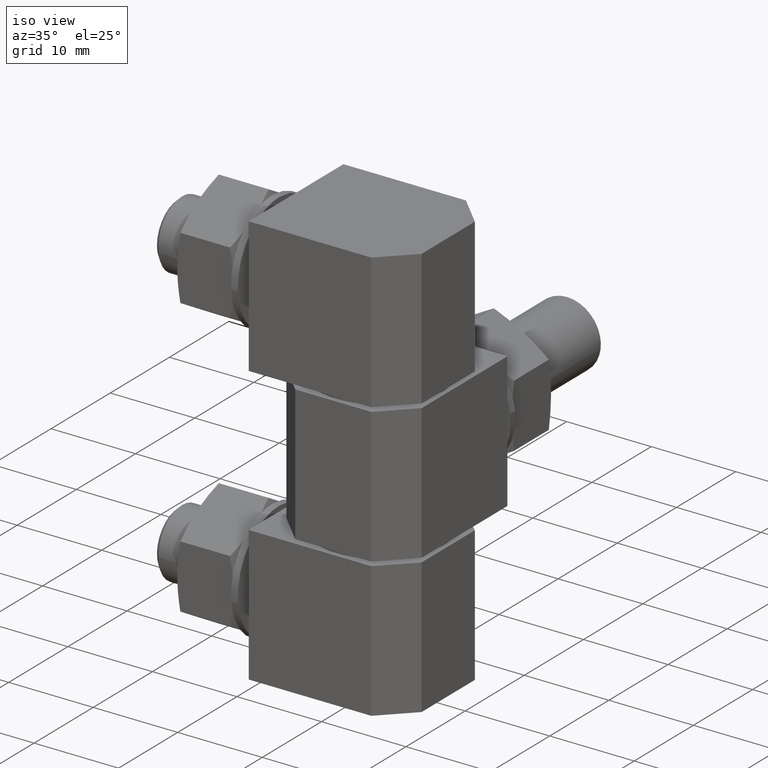
[diagram: clean part render]
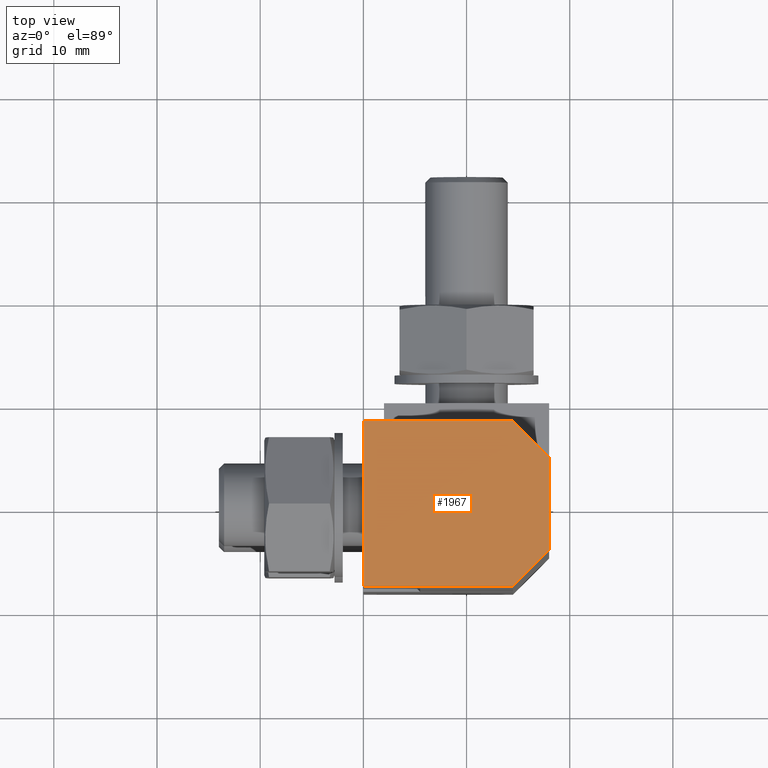
[diagram: tour spotlight — one face highlighted and labeled with its STEP entity id]
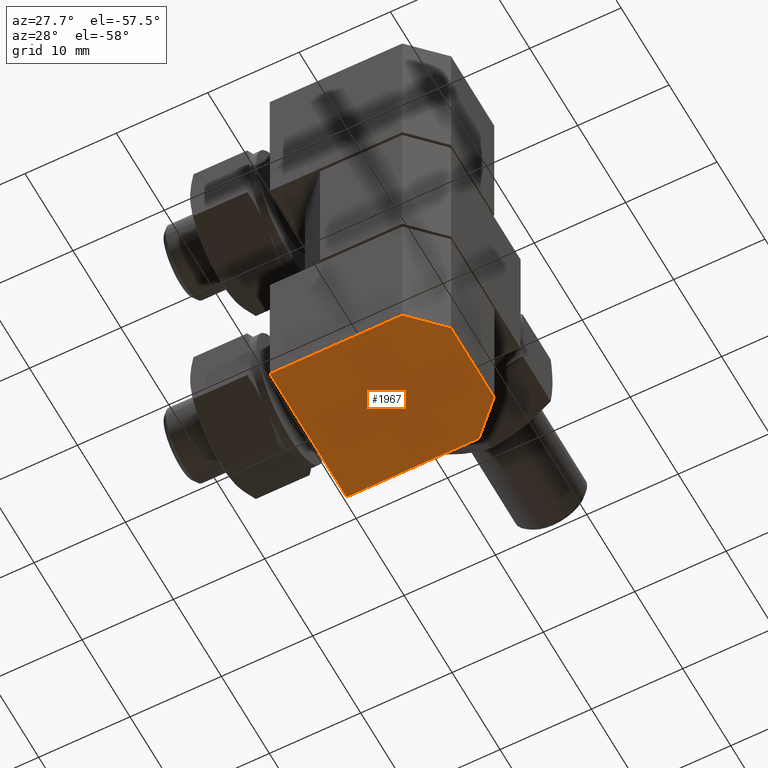
[diagram: tour spotlight — one face highlighted and labeled with its STEP entity id]
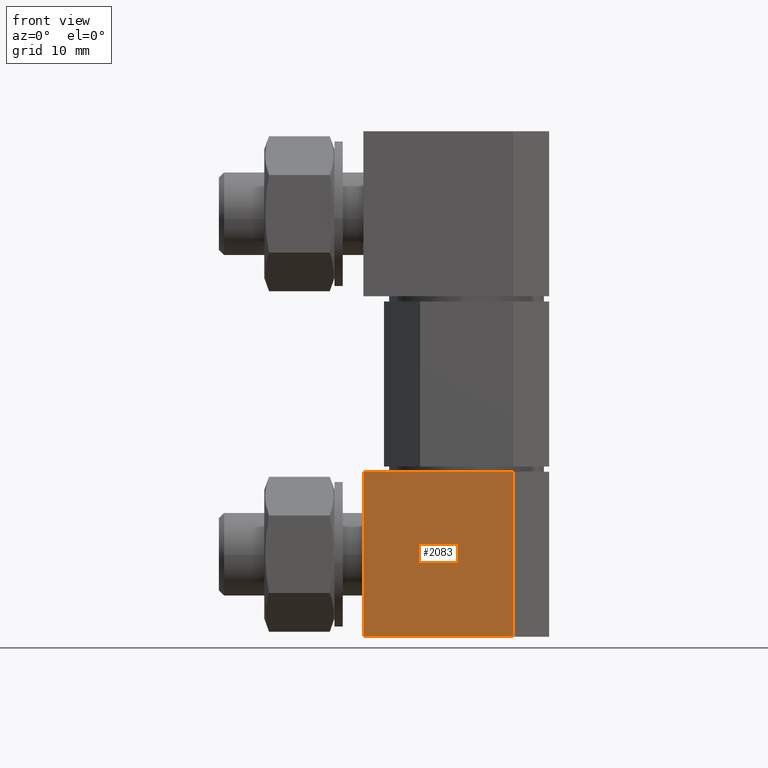
[diagram: tour spotlight — one face highlighted and labeled with its STEP entity id]
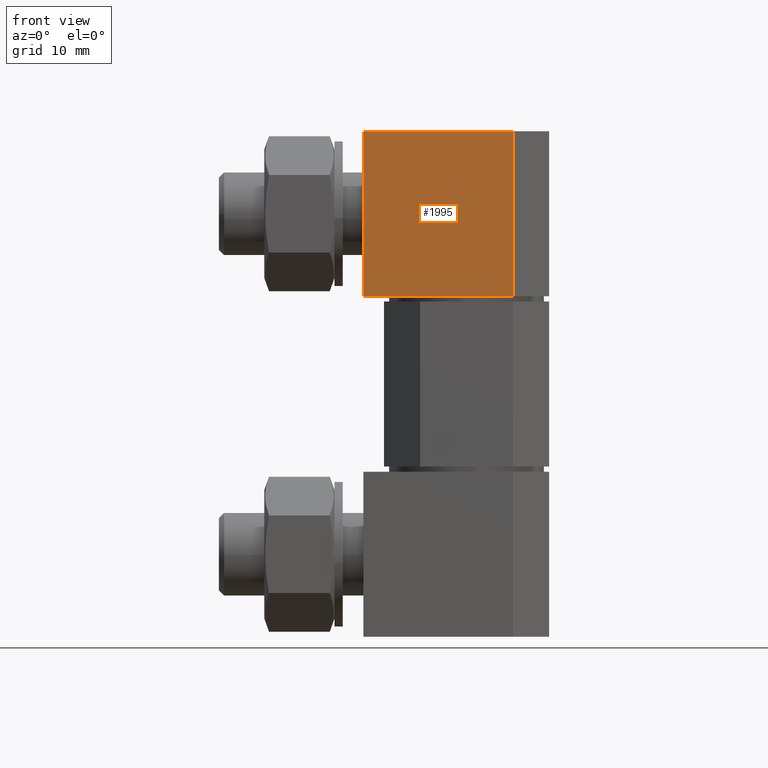
[diagram: tour spotlight — one face highlighted and labeled with its STEP entity id]
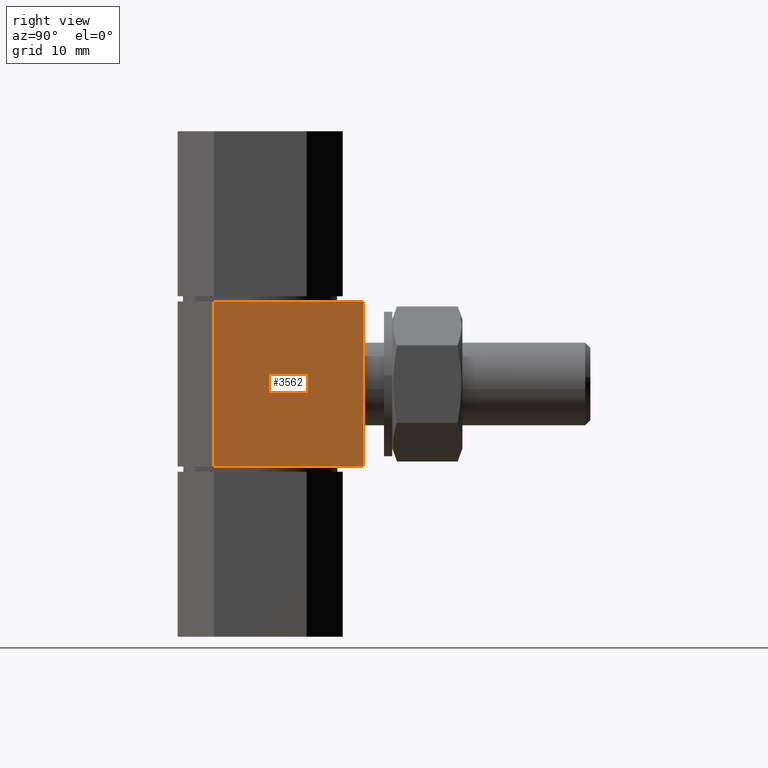
[diagram: tour spotlight — one face highlighted and labeled with its STEP entity id]
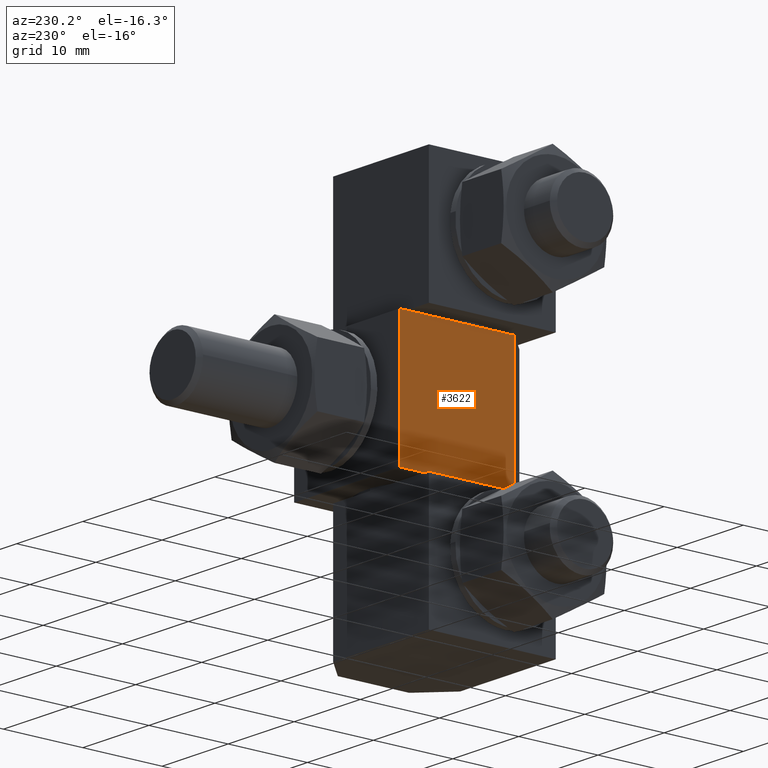
[diagram: tour spotlight — one face highlighted and labeled with its STEP entity id]
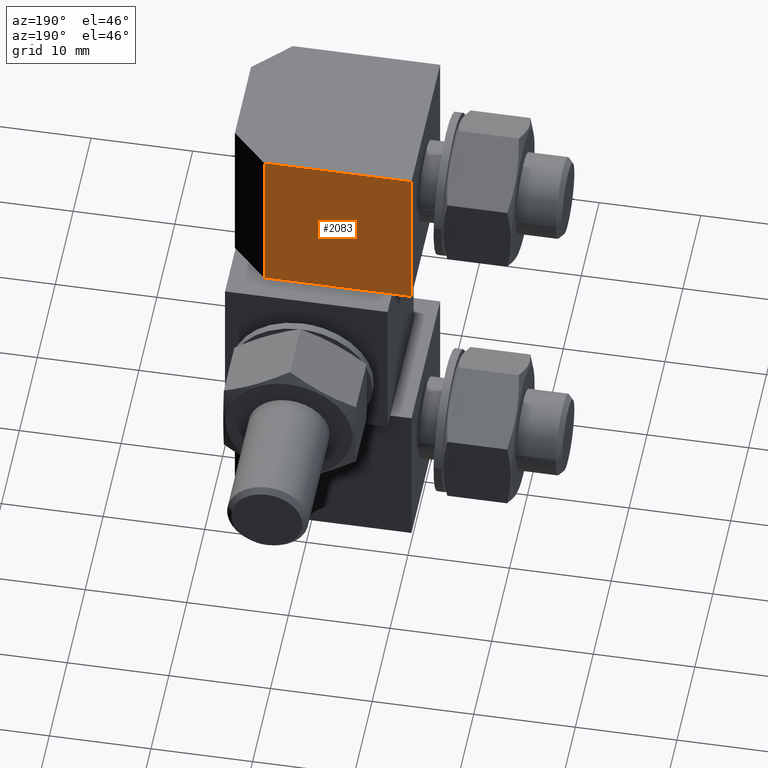
[diagram: tour spotlight — one face highlighted and labeled with its STEP entity id]
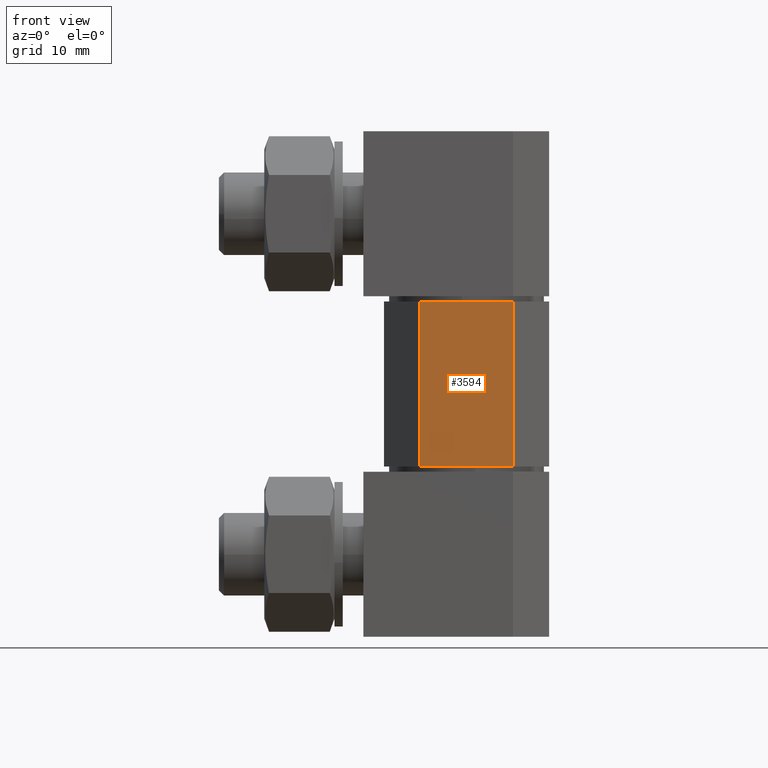
[diagram: tour spotlight — one face highlighted and labeled with its STEP entity id]
A machine part: a face-by-face anatomy tour. The part has 123 B-rep faces; the first image is the clean iso view, then the 8 largest visible faces are spotlighted one at a time (largest first), each with its STEP entity span.

Face 1 — top view, entity #1967. In plain terms, the highlighted face is a freeform B-spline surface patch.
Definition (entity closure, byte-faithful):
#1918=CARTESIAN_POINT('',(-10.899099911569930,-8.799200029372106,0.0));
#1919=CARTESIAN_POINT('',(8.899099494710047,-8.799200029372106,0.0));
#1920=CARTESIAN_POINT('',(-10.899099911569930,8.799199600218655,0.0));
#1921=CARTESIAN_POINT('',(8.899099494710047,8.799199600218655,0.0));
#1922=B_SPLINE_SURFACE_WITH_KNOTS('',1,1,((#1918,#1920),(#1919,#1921)),.UNSPECIFIED.,.F.,.F.,.U.,(2,2),(2,2),(0.0,19.798199406279981),(0.0,17.598399629590759),.UNSPECIFIED.);
#1923=CARTESIAN_POINT('',(-10.000000474974501,-8.000000379979609,0.0));
#1924=VERTEX_POINT('',#1923);
#1925=CARTESIAN_POINT('',(4.500000213738500,-8.000000379979600,0.0));
#1926=VERTEX_POINT('',#1925);
#1927=CARTESIAN_POINT('',(-10.000000474974501,-8.000000379979609,0.0));
#1928=CARTESIAN_POINT('',(4.500000213738500,-8.000000379979600,0.0));
#1929=QUASI_UNIFORM_CURVE('',1,(#1927,#1928),.UNSPECIFIED.,.F.,.U.);
#1930=EDGE_CURVE('',#1924,#1926,#1929,.T.);
#1931=ORIENTED_EDGE('',*,*,#1930,.F.);
#1932=CARTESIAN_POINT('',(-10.000000474974501,8.000000379979619,0.0));
#1933=VERTEX_POINT('',#1932);
#1934=CARTESIAN_POINT('',(-10.000000474974501,8.000000379979619,0.0));
#1935=CARTESIAN_POINT('',(-10.000000474974501,-8.000000379979609,0.0));
#1936=QUASI_UNIFORM_CURVE('',1,(#1934,#1935),.UNSPECIFIED.,.F.,.U.);
#1937=EDGE_CURVE('',#1933,#1924,#1936,.T.);
#1938=ORIENTED_EDGE('',*,*,#1937,.F.);
#1939=CARTESIAN_POINT('',(4.500000213738500,8.000000379979619,0.0));
#1940=VERTEX_POINT('',#1939);
#1941=CARTESIAN_POINT('',(4.500000213738500,8.000000379979619,0.0));
#1942=CARTESIAN_POINT('',(-10.000000474974501,8.000000379979619,0.0));
#1943=QUASI_UNIFORM_CURVE('',1,(#1941,#1942),.UNSPECIFIED.,.F.,.U.);
#1944=EDGE_CURVE('',#1940,#1933,#1943,.T.);
#1945=ORIENTED_EDGE('',*,*,#1944,.F.);
#1946=CARTESIAN_POINT('',(8.000000379979641,4.500000213738500,0.0));
#1947=VERTEX_POINT('',#1946);
#1948=CARTESIAN_POINT('',(8.000000379979641,4.500000213738500,0.0));
#1949=CARTESIAN_POINT('',(4.500000213738500,8.000000379979619,0.0));
#1950=QUASI_UNIFORM_CURVE('',1,(#1948,#1949),.UNSPECIFIED.,.F.,.U.);
#1951=EDGE_CURVE('',#1947,#1940,#1950,.T.);
#1952=ORIENTED_EDGE('',*,*,#1951,.F.);
#1953=CARTESIAN_POINT('',(8.000000379979710,-4.500000213738519,0.0));
#1954=VERTEX_POINT('',#1953);
#1955=CARTESIAN_POINT('',(8.000000379979710,-4.500000213738519,0.0));
#1956=CARTESIAN_POINT('',(8.000000379979641,4.500000213738500,0.0));
#1957=QUASI_UNIFORM_CURVE('',1,(#1955,#1956),.UNSPECIFIED.,.F.,.U.);
#1958=EDGE_CURVE('',#1954,#1947,#1957,.T.);
#1959=ORIENTED_EDGE('',*,*,#1958,.F.);
#1960=CARTESIAN_POINT('',(4.500000213738500,-8.000000379979600,0.0));
#1961=CARTESIAN_POINT('',(8.000000379979710,-4.500000213738519,0.0));
#1962=QUASI_UNIFORM_CURVE('',1,(#1960,#1961),.UNSPECIFIED.,.F.,.U.);
#1963=EDGE_CURVE('',#1926,#1954,#1962,.T.);
#1964=ORIENTED_EDGE('',*,*,#1963,.F.);
#1965=EDGE_LOOP('',(#1931,#1938,#1945,#1952,#1959,#1964));
#1966=FACE_OUTER_BOUND('',#1965,.T.);
#1967=ADVANCED_FACE('',(#1966),#1922,.F.);

Face 2 — auxiliary view, entity #1967. In plain terms, the highlighted face is a freeform B-spline surface patch.
Definition (entity closure, byte-faithful):
#1918=CARTESIAN_POINT('',(-10.899099911569930,-8.799200029372106,0.0));
#1919=CARTESIAN_POINT('',(8.899099494710047,-8.799200029372106,0.0));
#1920=CARTESIAN_POINT('',(-10.899099911569930,8.799199600218655,0.0));
#1921=CARTESIAN_POINT('',(8.899099494710047,8.799199600218655,0.0));
#1922=B_SPLINE_SURFACE_WITH_KNOTS('',1,1,((#1918,#1920),(#1919,#1921)),.UNSPECIFIED.,.F.,.F.,.U.,(2,2),(2,2),(0.0,19.798199406279981),(0.0,17.598399629590759),.UNSPECIFIED.);
#1923=CARTESIAN_POINT('',(-10.000000474974501,-8.000000379979609,0.0));
#1924=VERTEX_POINT('',#1923);
#1925=CARTESIAN_POINT('',(4.500000213738500,-8.000000379979600,0.0));
#1926=VERTEX_POINT('',#1925);
#1927=CARTESIAN_POINT('',(-10.000000474974501,-8.000000379979609,0.0));
#1928=CARTESIAN_POINT('',(4.500000213738500,-8.000000379979600,0.0));
#1929=QUASI_UNIFORM_CURVE('',1,(#1927,#1928),.UNSPECIFIED.,.F.,.U.);
#1930=EDGE_CURVE('',#1924,#1926,#1929,.T.);
#1931=ORIENTED_EDGE('',*,*,#1930,.F.);
#1932=CARTESIAN_POINT('',(-10.000000474974501,8.000000379979619,0.0));
#1933=VERTEX_POINT('',#1932);
#1934=CARTESIAN_POINT('',(-10.000000474974501,8.000000379979619,0.0));
#1935=CARTESIAN_POINT('',(-10.000000474974501,-8.000000379979609,0.0));
#1936=QUASI_UNIFORM_CURVE('',1,(#1934,#1935),.UNSPECIFIED.,.F.,.U.);
#1937=EDGE_CURVE('',#1933,#1924,#1936,.T.);
#1938=ORIENTED_EDGE('',*,*,#1937,.F.);
#1939=CARTESIAN_POINT('',(4.500000213738500,8.000000379979619,0.0));
#1940=VERTEX_POINT('',#1939);
#1941=CARTESIAN_POINT('',(4.500000213738500,8.000000379979619,0.0));
#1942=CARTESIAN_POINT('',(-10.000000474974501,8.000000379979619,0.0));
#1943=QUASI_UNIFORM_CURVE('',1,(#1941,#1942),.UNSPECIFIED.,.F.,.U.);
#1944=EDGE_CURVE('',#1940,#1933,#1943,.T.);
#1945=ORIENTED_EDGE('',*,*,#1944,.F.);
#1946=CARTESIAN_POINT('',(8.000000379979641,4.500000213738500,0.0));
#1947=VERTEX_POINT('',#1946);
#1948=CARTESIAN_POINT('',(8.000000379979641,4.500000213738500,0.0));
#1949=CARTESIAN_POINT('',(4.500000213738500,8.000000379979619,0.0));
#1950=QUASI_UNIFORM_CURVE('',1,(#1948,#1949),.UNSPECIFIED.,.F.,.U.);
#1951=EDGE_CURVE('',#1947,#1940,#1950,.T.);
#1952=ORIENTED_EDGE('',*,*,#1951,.F.);
#1953=CARTESIAN_POINT('',(8.000000379979710,-4.500000213738519,0.0));
#1954=VERTEX_POINT('',#1953);
#1955=CARTESIAN_POINT('',(8.000000379979710,-4.500000213738519,0.0));
#1956=CARTESIAN_POINT('',(8.000000379979641,4.500000213738500,0.0));
#1957=QUASI_UNIFORM_CURVE('',1,(#1955,#1956),.UNSPECIFIED.,.F.,.U.);
#1958=EDGE_CURVE('',#1954,#1947,#1957,.T.);
#1959=ORIENTED_EDGE('',*,*,#1958,.F.);
#1960=CARTESIAN_POINT('',(4.500000213738500,-8.000000379979600,0.0));
#1961=CARTESIAN_POINT('',(8.000000379979710,-4.500000213738519,0.0));
#1962=QUASI_UNIFORM_CURVE('',1,(#1960,#1961),.UNSPECIFIED.,.F.,.U.);
#1963=EDGE_CURVE('',#1926,#1954,#1962,.T.);
#1964=ORIENTED_EDGE('',*,*,#1963,.F.);
#1965=EDGE_LOOP('',(#1931,#1938,#1945,#1952,#1959,#1964));
#1966=FACE_OUTER_BOUND('',#1965,.T.);
#1967=ADVANCED_FACE('',(#1966),#1922,.F.);

Face 3 — front view, entity #2083. In plain terms, the highlighted face is a freeform B-spline surface patch.
Definition (entity closure, byte-faithful):
#1923=CARTESIAN_POINT('',(-10.000000474974501,-8.000000379979609,0.0));
#1924=VERTEX_POINT('',#1923);
#1925=CARTESIAN_POINT('',(4.500000213738500,-8.000000379979600,0.0));
#1926=VERTEX_POINT('',#1925);
#1927=CARTESIAN_POINT('',(-10.000000474974501,-8.000000379979609,0.0));
#1928=CARTESIAN_POINT('',(4.500000213738500,-8.000000379979600,0.0));
#1929=QUASI_UNIFORM_CURVE('',1,(#1927,#1928),.UNSPECIFIED.,.F.,.U.);
#1930=EDGE_CURVE('',#1924,#1926,#1929,.T.);
#2047=CARTESIAN_POINT('',(4.500000213738500,-8.000000379979600,16.000000759959200));
#2048=VERTEX_POINT('',#2047);
#2054=CARTESIAN_POINT('',(4.500000213738500,-8.000000379979600,16.000000759959200));
#2055=CARTESIAN_POINT('',(4.500000213738500,-8.000000379979600,0.0));
#2056=QUASI_UNIFORM_CURVE('',1,(#2054,#2055),.UNSPECIFIED.,.F.,.U.);
#2057=EDGE_CURVE('',#2048,#1926,#2056,.T.);
#2062=CARTESIAN_POINT('',(5.224275032116081,-8.000000379979609,-0.799199949785615));
#2063=CARTESIAN_POINT('',(-10.724274774791651,-8.000000379979609,-0.799199949785615));
#2064=CARTESIAN_POINT('',(5.224275032116081,-8.000000379979609,16.799199994489040));
#2065=CARTESIAN_POINT('',(-10.724274774791651,-8.000000379979609,16.799199994489040));
#2066=B_SPLINE_SURFACE_WITH_KNOTS('',1,1,((#2062,#2064),(#2063,#2065)),.UNSPECIFIED.,.F.,.F.,.U.,(2,2),(2,2),(0.0,15.948549806907730),(0.0,17.598399944274661),.UNSPECIFIED.);
#2067=ORIENTED_EDGE('',*,*,#1930,.T.);
#2068=ORIENTED_EDGE('',*,*,#2057,.F.);
#2069=CARTESIAN_POINT('',(-10.000000474974501,-8.000000379979609,16.000000759959200));
#2070=VERTEX_POINT('',#2069);
#2071=CARTESIAN_POINT('',(-10.000000474974501,-8.000000379979609,16.000000759959200));
#2072=CARTESIAN_POINT('',(4.500000213738500,-8.000000379979600,16.000000759959200));
#2073=QUASI_UNIFORM_CURVE('',1,(#2071,#2072),.UNSPECIFIED.,.F.,.U.);
#2074=EDGE_CURVE('',#2070,#2048,#2073,.T.);
#2075=ORIENTED_EDGE('',*,*,#2074,.F.);
#2076=CARTESIAN_POINT('',(-10.000000474974501,-8.000000379979609,16.000000759959200));
#2077=CARTESIAN_POINT('',(-10.000000474974501,-8.000000379979609,0.0));
#2078=QUASI_UNIFORM_CURVE('',1,(#2076,#2077),.UNSPECIFIED.,.F.,.U.);
#2079=EDGE_CURVE('',#2070,#1924,#2078,.T.);
#2080=ORIENTED_EDGE('',*,*,#2079,.T.);
#2081=EDGE_LOOP('',(#2067,#2068,#2075,#2080));
#2082=FACE_OUTER_BOUND('',#2081,.T.);
#2083=ADVANCED_FACE('',(#2082),#2066,.F.);

Face 4 — front view, entity #1995. In plain terms, the highlighted face is a freeform B-spline surface patch.
Definition (entity closure, byte-faithful):
#1932=CARTESIAN_POINT('',(-10.000000474974501,8.000000379979619,0.0));
#1933=VERTEX_POINT('',#1932);
#1939=CARTESIAN_POINT('',(4.500000213738500,8.000000379979619,0.0));
#1940=VERTEX_POINT('',#1939);
#1941=CARTESIAN_POINT('',(4.500000213738500,8.000000379979619,0.0));
#1942=CARTESIAN_POINT('',(-10.000000474974501,8.000000379979619,0.0));
#1943=QUASI_UNIFORM_CURVE('',1,(#1941,#1942),.UNSPECIFIED.,.F.,.U.);
#1944=EDGE_CURVE('',#1940,#1933,#1943,.T.);
#1968=CARTESIAN_POINT('',(-10.724275021120819,8.000000379979619,16.799200015925258));
#1969=CARTESIAN_POINT('',(-10.724275021120819,8.000000379979619,-0.799200400375293));
#1970=CARTESIAN_POINT('',(5.224274500604603,8.000000379979619,16.799200015925258));
#1971=CARTESIAN_POINT('',(5.224274500604603,8.000000379979619,-0.799200400375293));
#1972=B_SPLINE_SURFACE_WITH_KNOTS('',1,1,((#1968,#1970),(#1969,#1971)),.UNSPECIFIED.,.F.,.F.,.U.,(2,2),(2,2),(0.0,17.598400416300560),(0.0,15.948549521725420),.UNSPECIFIED.);
#1973=ORIENTED_EDGE('',*,*,#1944,.T.);
#1974=CARTESIAN_POINT('',(-10.000000474974501,8.000000379979619,16.000000759959200));
#1975=VERTEX_POINT('',#1974);
#1976=CARTESIAN_POINT('',(-10.000000474974501,8.000000379979619,16.000000759959200));
#1977=CARTESIAN_POINT('',(-10.000000474974501,8.000000379979619,0.0));
#1978=QUASI_UNIFORM_CURVE('',1,(#1976,#1977),.UNSPECIFIED.,.F.,.U.);
#1979=EDGE_CURVE('',#1975,#1933,#1978,.T.);
#1980=ORIENTED_EDGE('',*,*,#1979,.F.);
#1981=CARTESIAN_POINT('',(4.500000213738500,8.000000379979619,16.000000759959200));
#1982=VERTEX_POINT('',#1981);
#1983=CARTESIAN_POINT('',(4.500000213738500,8.000000379979619,16.000000759959200));
#1984=CARTESIAN_POINT('',(-10.000000474974501,8.000000379979619,16.000000759959200));
#1985=QUASI_UNIFORM_CURVE('',1,(#1983,#1984),.UNSPECIFIED.,.F.,.U.);
#1986=EDGE_CURVE('',#1982,#1975,#1985,.T.);
#1987=ORIENTED_EDGE('',*,*,#1986,.F.);
#1988=CARTESIAN_POINT('',(4.500000213738500,8.000000379979619,16.000000759959200));
#1989=CARTESIAN_POINT('',(4.500000213738500,8.000000379979619,0.0));
#1990=QUASI_UNIFORM_CURVE('',1,(#1988,#1989),.UNSPECIFIED.,.F.,.U.);
#1991=EDGE_CURVE('',#1982,#1940,#1990,.T.);
#1992=ORIENTED_EDGE('',*,*,#1991,.T.);
#1993=EDGE_LOOP('',(#1973,#1980,#1987,#1992));
#1994=FACE_OUTER_BOUND('',#1993,.T.);
#1995=ADVANCED_FACE('',(#1994),#1972,.F.);

Face 5 — right view, entity #3562. In plain terms, the highlighted face is a freeform B-spline surface patch.
Definition (entity closure, byte-faithful):
#3423=CARTESIAN_POINT('',(8.000000379979619,10.000000474974501,16.500000783707950));
#3424=VERTEX_POINT('',#3423);
#3430=CARTESIAN_POINT('',(8.000000379979619,-4.500000213738500,16.500000783707950));
#3431=VERTEX_POINT('',#3430);
#3432=CARTESIAN_POINT('',(8.000000379979619,-4.500000213738500,16.500000783707950));
#3433=CARTESIAN_POINT('',(8.000000379979619,10.000000474974501,16.500000783707950));
#3434=QUASI_UNIFORM_CURVE('',1,(#3432,#3433),.UNSPECIFIED.,.F.,.U.);
#3435=EDGE_CURVE('',#3431,#3424,#3434,.T.);
#3493=CARTESIAN_POINT('',(8.000000379979619,-4.500000213738500,32.500001543667047));
#3494=VERTEX_POINT('',#3493);
#3500=CARTESIAN_POINT('',(8.000000379979619,10.000000474974501,32.500001543667047));
#3501=VERTEX_POINT('',#3500);
#3502=CARTESIAN_POINT('',(8.000000379979619,-4.500000213738500,32.500001543667047));
#3503=CARTESIAN_POINT('',(8.000000379979619,10.000000474974501,32.500001543667047));
#3504=QUASI_UNIFORM_CURVE('',1,(#3502,#3503),.UNSPECIFIED.,.F.,.U.);
#3505=EDGE_CURVE('',#3494,#3501,#3504,.T.);
#3533=CARTESIAN_POINT('',(8.000000379979619,10.000000474974501,32.500001543667047));
#3534=CARTESIAN_POINT('',(8.000000379979619,10.000000474974501,16.500000783707950));
#3535=QUASI_UNIFORM_CURVE('',1,(#3533,#3534),.UNSPECIFIED.,.F.,.U.);
#3536=EDGE_CURVE('',#3501,#3424,#3535,.T.);
#3547=CARTESIAN_POINT('',(8.000000379979619,-5.224275032116083,15.700799989906219));
#3548=CARTESIAN_POINT('',(8.000000379979619,-5.224275032116083,33.299199619496846));
#3549=CARTESIAN_POINT('',(8.000000379979619,10.724274774791651,15.700799989906219));
#3550=CARTESIAN_POINT('',(8.000000379979619,10.724274774791651,33.299199619496846));
#3551=B_SPLINE_SURFACE_WITH_KNOTS('',1,1,((#3547,#3549),(#3548,#3550)),.UNSPECIFIED.,.F.,.F.,.U.,(2,2),(2,2),(0.0,17.598399629590620),(0.0,15.948549806907730),.UNSPECIFIED.);
#3552=ORIENTED_EDGE('',*,*,#3435,.T.);
#3553=ORIENTED_EDGE('',*,*,#3536,.F.);
#3554=ORIENTED_EDGE('',*,*,#3505,.F.);
#3555=CARTESIAN_POINT('',(8.000000379979619,-4.500000213738500,32.500001543667047));
#3556=CARTESIAN_POINT('',(8.000000379979619,-4.500000213738500,16.500000783707950));
#3557=QUASI_UNIFORM_CURVE('',1,(#3555,#3556),.UNSPECIFIED.,.F.,.U.);
#3558=EDGE_CURVE('',#3494,#3431,#3557,.T.);
#3559=ORIENTED_EDGE('',*,*,#3558,.T.);
#3560=EDGE_LOOP('',(#3552,#3553,#3554,#3559));
#3561=FACE_OUTER_BOUND('',#3560,.T.);
#3562=ADVANCED_FACE('',(#3561),#3551,.F.);

Face 6 — auxiliary view, entity #3622. In plain terms, the highlighted face is a freeform B-spline surface patch.
Definition (entity closure, byte-faithful):
#3414=CARTESIAN_POINT('',(-8.000000379979609,10.000000474974501,16.500000783707950));
#3415=VERTEX_POINT('',#3414);
#3416=CARTESIAN_POINT('',(-8.000000379979600,-4.500000213738500,16.500000783707950));
#3417=VERTEX_POINT('',#3416);
#3418=CARTESIAN_POINT('',(-8.000000379979609,10.000000474974501,16.500000783707950));
#3419=CARTESIAN_POINT('',(-8.000000379979600,-4.500000213738500,16.500000783707950));
#3420=QUASI_UNIFORM_CURVE('',1,(#3418,#3419),.UNSPECIFIED.,.F.,.U.);
#3421=EDGE_CURVE('',#3415,#3417,#3420,.T.);
#3470=CARTESIAN_POINT('',(-8.000000379979609,10.000000474974501,32.500001543667047));
#3471=VERTEX_POINT('',#3470);
#3472=CARTESIAN_POINT('',(-8.000000379979600,-4.500000213738500,32.500001543667047));
#3473=VERTEX_POINT('',#3472);
#3474=CARTESIAN_POINT('',(-8.000000379979609,10.000000474974501,32.500001543667047));
#3475=CARTESIAN_POINT('',(-8.000000379979600,-4.500000213738500,32.500001543667047));
#3476=QUASI_UNIFORM_CURVE('',1,(#3474,#3475),.UNSPECIFIED.,.F.,.U.);
#3477=EDGE_CURVE('',#3471,#3473,#3476,.T.);
#3527=CARTESIAN_POINT('',(-8.000000379979609,10.000000474974501,32.500001543667047));
#3528=CARTESIAN_POINT('',(-8.000000379979609,10.000000474974501,16.500000783707950));
#3529=QUASI_UNIFORM_CURVE('',1,(#3527,#3528),.UNSPECIFIED.,.F.,.U.);
#3530=EDGE_CURVE('',#3471,#3415,#3529,.T.);
#3603=CARTESIAN_POINT('',(-8.000000379979600,-4.500000213738500,32.500001543667047));
#3604=CARTESIAN_POINT('',(-8.000000379979600,-4.500000213738500,16.500000783707950));
#3605=QUASI_UNIFORM_CURVE('',1,(#3603,#3604),.UNSPECIFIED.,.F.,.U.);
#3606=EDGE_CURVE('',#3473,#3417,#3605,.T.);
#3611=CARTESIAN_POINT('',(-8.000000379979609,-5.224275032116081,15.700799989906219));
#3612=CARTESIAN_POINT('',(-8.000000379979609,10.724274774791651,15.700799989906219));
#3613=CARTESIAN_POINT('',(-8.000000379979609,-5.224275032116081,33.299199619496846));
#3614=CARTESIAN_POINT('',(-8.000000379979609,10.724274774791651,33.299199619496846));
#3615=B_SPLINE_SURFACE_WITH_KNOTS('',1,1,((#3611,#3613),(#3612,#3614)),.UNSPECIFIED.,.F.,.F.,.U.,(2,2),(2,2),(0.0,15.948549806907730),(0.0,17.598399629590620),.UNSPECIFIED.);
#3616=ORIENTED_EDGE('',*,*,#3421,.T.);
#3617=ORIENTED_EDGE('',*,*,#3606,.F.);
#3618=ORIENTED_EDGE('',*,*,#3477,.F.);
#3619=ORIENTED_EDGE('',*,*,#3530,.T.);
#3620=EDGE_LOOP('',(#3616,#3617,#3618,#3619));
#3621=FACE_OUTER_BOUND('',#3620,.T.);
#3622=ADVANCED_FACE('',(#3621),#3615,.F.);

Face 7 — auxiliary view, entity #2083. In plain terms, the highlighted face is a freeform B-spline surface patch.
Definition (entity closure, byte-faithful):
#1923=CARTESIAN_POINT('',(-10.000000474974501,-8.000000379979609,0.0));
#1924=VERTEX_POINT('',#1923);
#1925=CARTESIAN_POINT('',(4.500000213738500,-8.000000379979600,0.0));
#1926=VERTEX_POINT('',#1925);
#1927=CARTESIAN_POINT('',(-10.000000474974501,-8.000000379979609,0.0));
#1928=CARTESIAN_POINT('',(4.500000213738500,-8.000000379979600,0.0));
#1929=QUASI_UNIFORM_CURVE('',1,(#1927,#1928),.UNSPECIFIED.,.F.,.U.);
#1930=EDGE_CURVE('',#1924,#1926,#1929,.T.);
#2047=CARTESIAN_POINT('',(4.500000213738500,-8.000000379979600,16.000000759959200));
#2048=VERTEX_POINT('',#2047);
#2054=CARTESIAN_POINT('',(4.500000213738500,-8.000000379979600,16.000000759959200));
#2055=CARTESIAN_POINT('',(4.500000213738500,-8.000000379979600,0.0));
#2056=QUASI_UNIFORM_CURVE('',1,(#2054,#2055),.UNSPECIFIED.,.F.,.U.);
#2057=EDGE_CURVE('',#2048,#1926,#2056,.T.);
#2062=CARTESIAN_POINT('',(5.224275032116081,-8.000000379979609,-0.799199949785615));
#2063=CARTESIAN_POINT('',(-10.724274774791651,-8.000000379979609,-0.799199949785615));
#2064=CARTESIAN_POINT('',(5.224275032116081,-8.000000379979609,16.799199994489040));
#2065=CARTESIAN_POINT('',(-10.724274774791651,-8.000000379979609,16.799199994489040));
#2066=B_SPLINE_SURFACE_WITH_KNOTS('',1,1,((#2062,#2064),(#2063,#2065)),.UNSPECIFIED.,.F.,.F.,.U.,(2,2),(2,2),(0.0,15.948549806907730),(0.0,17.598399944274661),.UNSPECIFIED.);
#2067=ORIENTED_EDGE('',*,*,#1930,.T.);
#2068=ORIENTED_EDGE('',*,*,#2057,.F.);
#2069=CARTESIAN_POINT('',(-10.000000474974501,-8.000000379979609,16.000000759959200));
#2070=VERTEX_POINT('',#2069);
#2071=CARTESIAN_POINT('',(-10.000000474974501,-8.000000379979609,16.000000759959200));
#2072=CARTESIAN_POINT('',(4.500000213738500,-8.000000379979600,16.000000759959200));
#2073=QUASI_UNIFORM_CURVE('',1,(#2071,#2072),.UNSPECIFIED.,.F.,.U.);
#2074=EDGE_CURVE('',#2070,#2048,#2073,.T.);
#2075=ORIENTED_EDGE('',*,*,#2074,.F.);
#2076=CARTESIAN_POINT('',(-10.000000474974501,-8.000000379979609,16.000000759959200));
#2077=CARTESIAN_POINT('',(-10.000000474974501,-8.000000379979609,0.0));
#2078=QUASI_UNIFORM_CURVE('',1,(#2076,#2077),.UNSPECIFIED.,.F.,.U.);
#2079=EDGE_CURVE('',#2070,#1924,#2078,.T.);
#2080=ORIENTED_EDGE('',*,*,#2079,.T.);
#2081=EDGE_LOOP('',(#2067,#2068,#2075,#2080));
#2082=FACE_OUTER_BOUND('',#2081,.T.);
#2083=ADVANCED_FACE('',(#2082),#2066,.F.);

Face 8 — front view, entity #3594. In plain terms, the highlighted face is a freeform B-spline surface patch.
Definition (entity closure, byte-faithful):
#3437=CARTESIAN_POINT('',(4.500000213738500,-8.000000379979641,16.500000783707950));
#3438=VERTEX_POINT('',#3437);
#3444=CARTESIAN_POINT('',(-4.500000213738519,-8.000000379979710,16.500000783707950));
#3445=VERTEX_POINT('',#3444);
#3446=CARTESIAN_POINT('',(-4.500000213738519,-8.000000379979710,16.500000783707950));
#3447=CARTESIAN_POINT('',(4.500000213738500,-8.000000379979641,16.500000783707950));
#3448=QUASI_UNIFORM_CURVE('',1,(#3446,#3447),.UNSPECIFIED.,.F.,.U.);
#3449=EDGE_CURVE('',#3445,#3438,#3448,.T.);
#3479=CARTESIAN_POINT('',(-4.500000213738519,-8.000000379979710,32.500001543667047));
#3480=VERTEX_POINT('',#3479);
#3486=CARTESIAN_POINT('',(4.500000213738500,-8.000000379979641,32.500001543667047));
#3487=VERTEX_POINT('',#3486);
#3488=CARTESIAN_POINT('',(-4.500000213738519,-8.000000379979710,32.500001543667047));
#3489=CARTESIAN_POINT('',(4.500000213738500,-8.000000379979641,32.500001543667047));
#3490=QUASI_UNIFORM_CURVE('',1,(#3488,#3489),.UNSPECIFIED.,.F.,.U.);
#3491=EDGE_CURVE('',#3480,#3487,#3490,.T.);
#3571=CARTESIAN_POINT('',(4.500000213738500,-8.000000379979641,32.500001543667047));
#3572=CARTESIAN_POINT('',(4.500000213738500,-8.000000379979641,16.500000783707950));
#3573=QUASI_UNIFORM_CURVE('',1,(#3571,#3572),.UNSPECIFIED.,.F.,.U.);
#3574=EDGE_CURVE('',#3487,#3438,#3573,.T.);
#3579=CARTESIAN_POINT('',(4.949550016521778,-8.000000379979710,15.700799989906219));
#3580=CARTESIAN_POINT('',(-4.949549775122975,-8.000000379979710,15.700799989906219));
#3581=CARTESIAN_POINT('',(4.949550016521778,-8.000000379979710,33.299199619496846));
#3582=CARTESIAN_POINT('',(-4.949549775122975,-8.000000379979710,33.299199619496846));
#3583=B_SPLINE_SURFACE_WITH_KNOTS('',1,1,((#3579,#3581),(#3580,#3582)),.UNSPECIFIED.,.F.,.F.,.U.,(2,2),(2,2),(0.0,9.899099791644753),(0.0,17.598399629590620),.UNSPECIFIED.);
#3584=ORIENTED_EDGE('',*,*,#3449,.T.);
#3585=ORIENTED_EDGE('',*,*,#3574,.F.);
#3586=ORIENTED_EDGE('',*,*,#3491,.F.);
#3587=CARTESIAN_POINT('',(-4.500000213738519,-8.000000379979710,32.500001543667047));
#3588=CARTESIAN_POINT('',(-4.500000213738519,-8.000000379979710,16.500000783707950));
#3589=QUASI_UNIFORM_CURVE('',1,(#3587,#3588),.UNSPECIFIED.,.F.,.U.);
#3590=EDGE_CURVE('',#3480,#3445,#3589,.T.);
#3591=ORIENTED_EDGE('',*,*,#3590,.T.);
#3592=EDGE_LOOP('',(#3584,#3585,#3586,#3591));
#3593=FACE_OUTER_BOUND('',#3592,.T.);
#3594=ADVANCED_FACE('',(#3593),#3583,.F.);